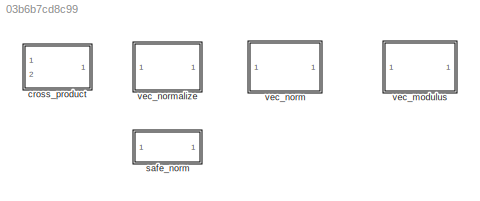
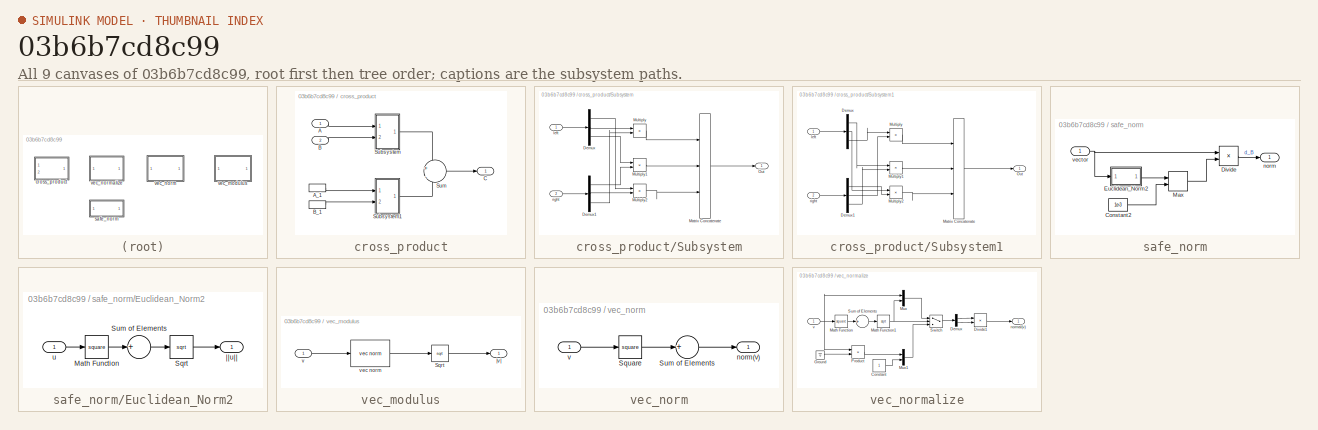
[diagram: thumbnail index - all 9 canvases of the model, root first then tree order]
MODEL slx_03b6b7cd8c99
KIND library
CONFIG AbsTol = auto
CONFIG EnableMultiTasking = off
CONFIG FixedStep = auto
CONFIG MaxStep = auto
CONFIG MinStep = auto
CONFIG RelTol = 1e-3
CONFIG SampleTimeConstraint = Unconstrained
CONFIG Solver = VariableStepAuto
CONFIG SolverName = VariableStepAuto
CONFIG StartTime = 0.0
CONFIG StopTime = 10.0
BLOCK [SubSystem] cross_product
  Ports = [2, 1]
  RequestExecContextInheritance = off
BLOCK [Inport] cross_product/A
  IconDisplay = Port number
BLOCK [InportShadow] cross_product/A_1
  IconDisplay = Port number
BLOCK [Inport] cross_product/B
  IconDisplay = Port number
  Port = 2
BLOCK [InportShadow] cross_product/B_1
  IconDisplay = Port number
  Port = 2
BLOCK [Outport] cross_product/C
  IconDisplay = Port number
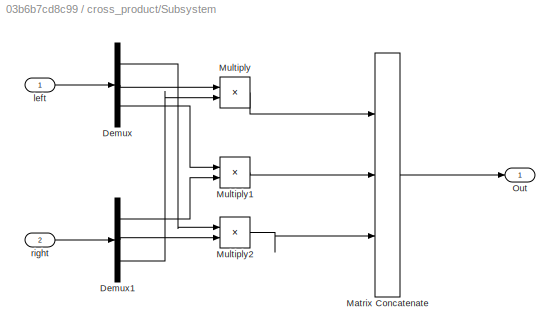
BLOCK [SubSystem] cross_product/Subsystem
  Ports = [2, 1]
  RequestExecContextInheritance = off
BLOCK [Demux] cross_product/Subsystem/Demux
  DisplayOption = bar
  Outputs = 3
  Ports = [1, 3]
BLOCK [Demux] cross_product/Subsystem/Demux1
  DisplayOption = bar
  Outputs = 3
  Ports = [1, 3]
BLOCK [Concatenate] cross_product/Subsystem/Matrix Concatenate
  ConcatenateDimension = 2
  NumInputs = 3
  Ports = [3, 1]
BLOCK [Product] cross_product/Subsystem/Multiply
  InputSameDT = off
  Ports = [2, 1]
  RndMeth = Floor
  SaturateOnIntegerOverflow = off
BLOCK [Product] cross_product/Subsystem/Multiply1
  InputSameDT = off
  Ports = [2, 1]
  RndMeth = Floor
  SaturateOnIntegerOverflow = off
BLOCK [Product] cross_product/Subsystem/Multiply2
  InputSameDT = off
  Ports = [2, 1]
  RndMeth = Floor
  SaturateOnIntegerOverflow = off
BLOCK [Outport] cross_product/Subsystem/Out
  IconDisplay = Port number
BLOCK [Inport] cross_product/Subsystem/left
  IconDisplay = Port number
BLOCK [Inport] cross_product/Subsystem/right
  IconDisplay = Port number
  Port = 2
BLOCK [SubSystem] cross_product/Subsystem1
  Ports = [2, 1]
  RequestExecContextInheritance = off
BLOCK [Demux] cross_product/Subsystem1/Demux
  DisplayOption = bar
  Outputs = 3
  Ports = [1, 3]
BLOCK [Demux] cross_product/Subsystem1/Demux1
  DisplayOption = bar
  Outputs = 3
  Ports = [1, 3]
BLOCK [Concatenate] cross_product/Subsystem1/Matrix Concatenate
  ConcatenateDimension = 2
  NumInputs = 3
  Ports = [3, 1]
BLOCK [Product] cross_product/Subsystem1/Multiply
  InputSameDT = off
  Ports = [2, 1]
  RndMeth = Floor
  SaturateOnIntegerOverflow = off
BLOCK [Product] cross_product/Subsystem1/Multiply1
  InputSameDT = off
  Ports = [2, 1]
  RndMeth = Floor
  SaturateOnIntegerOverflow = off
BLOCK [Product] cross_product/Subsystem1/Multiply2
  InputSameDT = off
  Ports = [2, 1]
  RndMeth = Floor
  SaturateOnIntegerOverflow = off
BLOCK [Outport] cross_product/Subsystem1/Out
  IconDisplay = Port number
BLOCK [Inport] cross_product/Subsystem1/left
  IconDisplay = Port number
BLOCK [Inport] cross_product/Subsystem1/right
  IconDisplay = Port number
  Port = 2
BLOCK [Sum] cross_product/Sum
  IconShape = round
  Inputs = +|-
  Ports = [2, 1]
BLOCK [SubSystem] safe_norm
  Ports = [1, 1]
  RequestExecContextInheritance = off
BLOCK [Constant] safe_norm/Constant2
  OutDataTypeStr = Inherit: Inherit via back propagation
  Value = 1e-3
BLOCK [Product] safe_norm/Divide
  InputSameDT = off
  Inputs = */
  OutDataTypeStr = Inherit: Inherit via internal rule
  Ports = [2, 1]
  RndMeth = Floor
  SaturateOnIntegerOverflow = off
BLOCK [SubSystem] safe_norm/Euclidean_Norm2
  Ports = [1, 1]
  RequestExecContextInheritance = off
  ShowPortLabels = none
BLOCK [Math] safe_norm/Euclidean_Norm2/Math Function
  Operator = square
  Ports = [1, 1]
BLOCK [Sqrt] safe_norm/Euclidean_Norm2/Sqrt
BLOCK [Sum] safe_norm/Euclidean_Norm2/Sum of Elements
  InputSameDT = off
  Inputs = +
  OutDataTypeStr = Inherit: Inherit via internal rule
  Ports = [1, 1]
  SaturateOnIntegerOverflow = off
BLOCK [Inport] safe_norm/Euclidean_Norm2/u
  IconDisplay = Port number
BLOCK [Outport] safe_norm/Euclidean_Norm2/||u||
  IconDisplay = Port number
BLOCK [MinMax] safe_norm/Max
  Function = max
  InputSameDT = off
  Inputs = 2
  Ports = [2, 1]
  SaturateOnIntegerOverflow = off
BLOCK [Outport] safe_norm/norm
  IconDisplay = Port number
BLOCK [Inport] safe_norm/vector
  IconDisplay = Port number
BLOCK [SubSystem] vec_modulus
  Ports = [1, 1]
  RequestExecContextInheritance = off
BLOCK [Sqrt] vec_modulus/Sqrt
BLOCK [Inport] vec_modulus/v
  IconDisplay = Port number
BLOCK [Reference] vec_modulus/vec norm  REF=AP_Math_2016b/vec norm
  Ports = [1, 1]
  SourceBlock = AP_Math_2016b/vec norm
  SourceType = SubSystem
BLOCK [Outport] vec_modulus/|v|
  IconDisplay = Port number
BLOCK [SubSystem] vec_norm
  Ports = [1, 1]
  RequestExecContextInheritance = off
BLOCK [Math] vec_norm/Square
  Operator = square
  Ports = [1, 1]
BLOCK [Sum] vec_norm/Sum of Elements
  InputSameDT = off
  Inputs = +
  Ports = [1, 1]
  SaturateOnIntegerOverflow = off
BLOCK [Outport] vec_norm/norm(v)
  IconDisplay = Port number
BLOCK [Inport] vec_norm/v
  IconDisplay = Port number
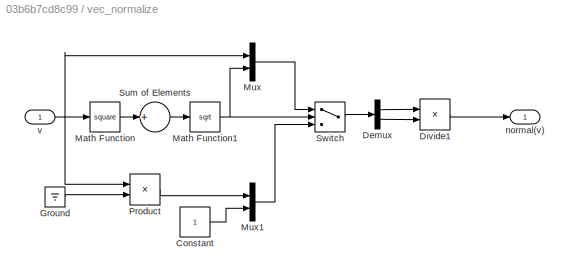
BLOCK [SubSystem] vec_normalize
  Ports = [1, 1]
  RequestExecContextInheritance = off
BLOCK [Constant] vec_normalize/Constant
  OutDataTypeStr = single
BLOCK [Demux] vec_normalize/Demux
  DisplayOption = bar
  Outputs = [-1 1]
  Ports = [1, 2]
BLOCK [Product] vec_normalize/Divide1
  InputSameDT = off
  Inputs = */
  OutDataTypeStr = single
  Ports = [2, 1]
  RndMeth = Floor
  SaturateOnIntegerOverflow = off
BLOCK [Ground] vec_normalize/Ground
BLOCK [Math] vec_normalize/Math Function
  Operator = square
  Ports = [1, 1]
BLOCK [Math] vec_normalize/Math Function1
  Operator = sqrt
  Ports = [1, 1]
BLOCK [Mux] vec_normalize/Mux
  DisplayOption = bar
  Inputs = 2
  Ports = [2, 1]
BLOCK [Mux] vec_normalize/Mux1
  DisplayOption = bar
  Inputs = 2
  Ports = [2, 1]
BLOCK [Product] vec_normalize/Product
  InputSameDT = off
  OutDataTypeStr = single
  Ports = [2, 1]
  SaturateOnIntegerOverflow = off
BLOCK [Sum] vec_normalize/Sum of Elements
  AccumDataTypeStr = single
  InputSameDT = off
  Inputs = +
  OutDataTypeStr = Inherit: Inherit via internal rule
  Ports = [1, 1]
  SaturateOnIntegerOverflow = off
BLOCK [Switch] vec_normalize/Switch
  Criteria = u2 > Threshold
  InputSameDT = off
  SaturateOnIntegerOverflow = off
BLOCK [Outport] vec_normalize/normal(v)
  IconDisplay = Port number
BLOCK [Inport] vec_normalize/v
  IconDisplay = Port number
LINE cross_product/A:1 -> cross_product/Subsystem:1
LINE cross_product/A_1:1 -> cross_product/Subsystem1:1
LINE cross_product/B:1 -> cross_product/Subsystem:2
LINE cross_product/B_1:1 -> cross_product/Subsystem1:2
LINE cross_product/Subsystem/Demux1:1 -> cross_product/Subsystem/Multiply1:2
LINE cross_product/Subsystem/Demux1:2 -> cross_product/Subsystem/Multiply2:2
LINE cross_product/Subsystem/Demux1:3 -> cross_product/Subsystem/Multiply:2
LINE cross_product/Subsystem/Demux:1 -> cross_product/Subsystem/Multiply2:1
LINE cross_product/Subsystem/Demux:2 -> cross_product/Subsystem/Multiply:1
LINE cross_product/Subsystem/Demux:3 -> cross_product/Subsystem/Multiply1:1
LINE cross_product/Subsystem/Matrix Concatenate:1 -> cross_product/Subsystem/Out:1
LINE cross_product/Subsystem/Multiply1:1 -> cross_product/Subsystem/Matrix Concatenate:2
LINE cross_product/Subsystem/Multiply2:1 -> cross_product/Subsystem/Matrix Concatenate:3
LINE cross_product/Subsystem/Multiply:1 -> cross_product/Subsystem/Matrix Concatenate:1
LINE cross_product/Subsystem/left:1 -> cross_product/Subsystem/Demux:1
LINE cross_product/Subsystem/right:1 -> cross_product/Subsystem/Demux1:1
LINE cross_product/Subsystem1/Demux1:1 -> cross_product/Subsystem1/Multiply2:2
LINE cross_product/Subsystem1/Demux1:2 -> cross_product/Subsystem1/Multiply:2
LINE cross_product/Subsystem1/Demux1:3 -> cross_product/Subsystem1/Multiply1:2
LINE cross_product/Subsystem1/Demux:1 -> cross_product/Subsystem1/Multiply1:1
LINE cross_product/Subsystem1/Demux:2 -> cross_product/Subsystem1/Multiply2:1
LINE cross_product/Subsystem1/Demux:3 -> cross_product/Subsystem1/Multiply:1
LINE cross_product/Subsystem1/Matrix Concatenate:1 -> cross_product/Subsystem1/Out:1
LINE cross_product/Subsystem1/Multiply1:1 -> cross_product/Subsystem1/Matrix Concatenate:2
LINE cross_product/Subsystem1/Multiply2:1 -> cross_product/Subsystem1/Matrix Concatenate:3
LINE cross_product/Subsystem1/Multiply:1 -> cross_product/Subsystem1/Matrix Concatenate:1
LINE cross_product/Subsystem1/left:1 -> cross_product/Subsystem1/Demux:1
LINE cross_product/Subsystem1/right:1 -> cross_product/Subsystem1/Demux1:1
LINE cross_product/Subsystem1:1 -> cross_product/Sum:2
LINE cross_product/Subsystem:1 -> cross_product/Sum:1
LINE cross_product/Sum:1 -> cross_product/C:1
LINE safe_norm/Constant2:1 -> safe_norm/Max:2
LINE safe_norm/Divide:1 -> safe_norm/norm:1
LINE safe_norm/Euclidean_Norm2/Math Function:1 -> safe_norm/Euclidean_Norm2/Sum of Elements:1
LINE safe_norm/Euclidean_Norm2/Sqrt:1 -> safe_norm/Euclidean_Norm2/||u||:1
LINE safe_norm/Euclidean_Norm2/Sum of Elements:1 -> safe_norm/Euclidean_Norm2/Sqrt:1
LINE safe_norm/Euclidean_Norm2/u:1 -> safe_norm/Euclidean_Norm2/Math Function:1
LINE safe_norm/Euclidean_Norm2:1 -> safe_norm/Max:1
LINE safe_norm/Max:1 -> safe_norm/Divide:2
NET safe_norm/vector:1 -> safe_norm/Divide:1, safe_norm/Euclidean_Norm2:1
LINE vec_modulus/Sqrt:1 -> vec_modulus/|v|:1
LINE vec_modulus/v:1 -> vec_modulus/vec norm:1
LINE vec_modulus/vec norm:1 -> vec_modulus/Sqrt:1
LINE vec_norm/Square:1 -> vec_norm/Sum of Elements:1
LINE vec_norm/Sum of Elements:1 -> vec_norm/norm(v):1
LINE vec_norm/v:1 -> vec_norm/Square:1
LINE vec_normalize/Constant:1 -> vec_normalize/Mux1:2
LINE vec_normalize/Demux:1 -> vec_normalize/Divide1:1
LINE vec_normalize/Demux:2 -> vec_normalize/Divide1:2
LINE vec_normalize/Divide1:1 -> vec_normalize/normal(v):1
LINE vec_normalize/Ground:1 -> vec_normalize/Product:2
NET vec_normalize/Math Function1:1 -> vec_normalize/Mux:2, vec_normalize/Switch:2
LINE vec_normalize/Math Function:1 -> vec_normalize/Sum of Elements:1
LINE vec_normalize/Mux1:1 -> vec_normalize/Switch:3
LINE vec_normalize/Mux:1 -> vec_normalize/Switch:1
LINE vec_normalize/Product:1 -> vec_normalize/Mux1:1
LINE vec_normalize/Sum of Elements:1 -> vec_normalize/Math Function1:1
LINE vec_normalize/Switch:1 -> vec_normalize/Demux:1
NET vec_normalize/v:1 -> vec_normalize/Math Function:1, vec_normalize/Mux:1, vec_normalize/Product:1
note: NET lines group one-source signal fan-out (src -> all destinations, sorted); 1:1 wires keep LINE
